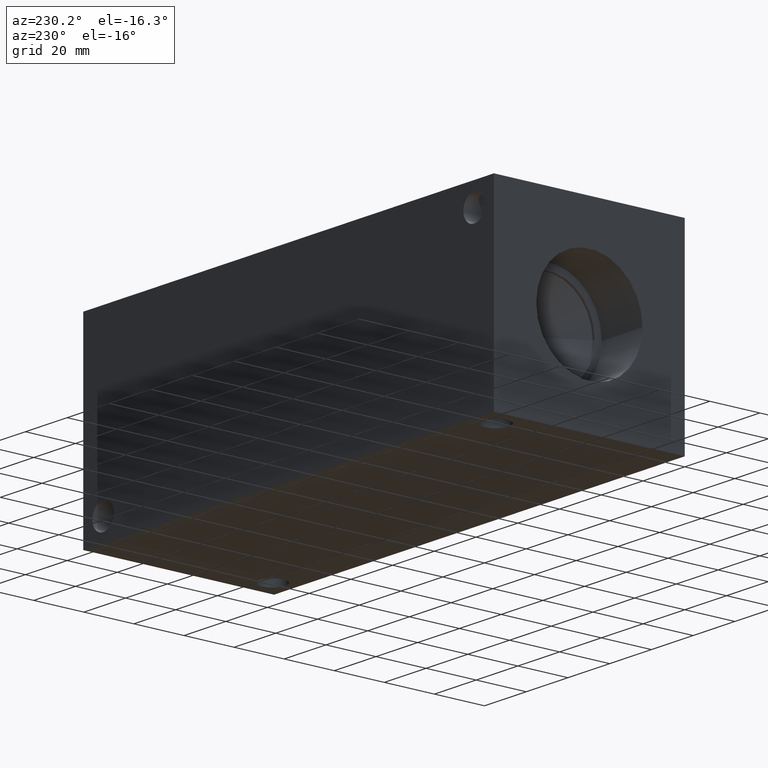
[diagram: clean part render]
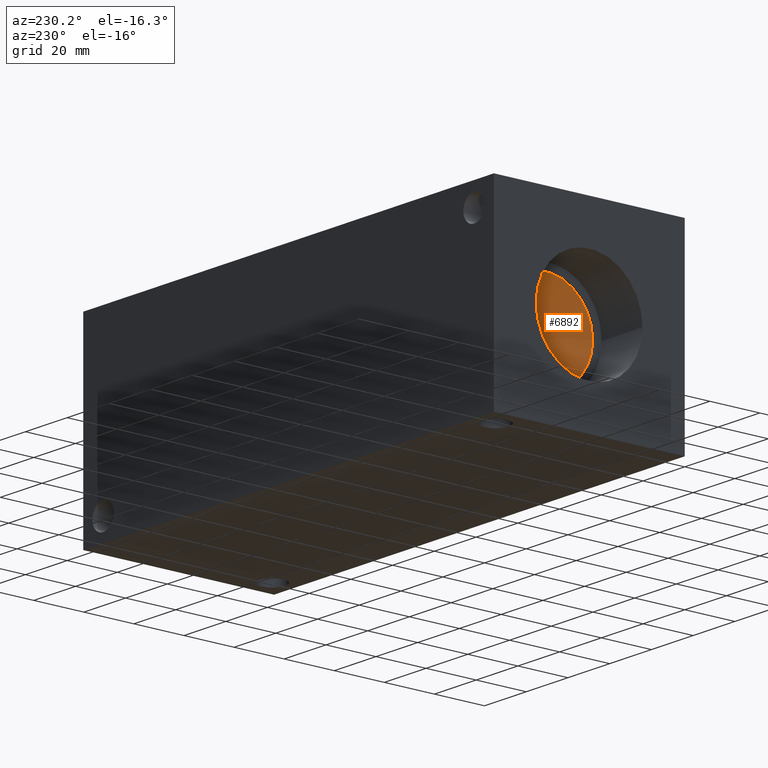
[diagram: same view with one face highlighted and labeled with its STEP entity id]
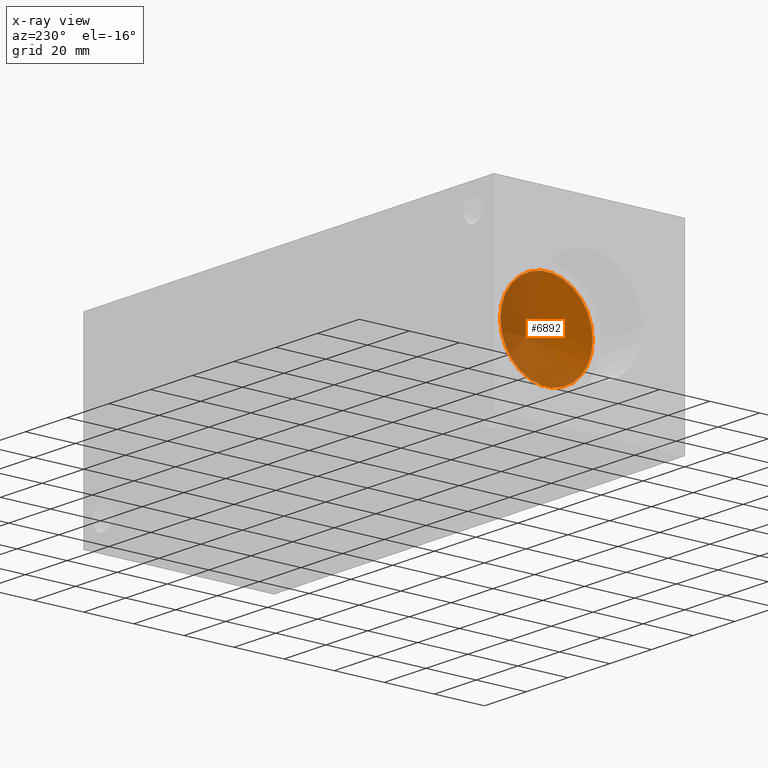
[diagram: x-ray of the same camera — body ghosted, the highlighted face saturated]
A machine part, auxiliary view. The second image highlights one B-rep face of the part: STEP entity #6892.
The next image is the same camera in x-ray: the body ghosted, the highlighted face saturated — about 52% of this face is hidden behind the body in this view.
In plain terms, the highlighted conical surface has half-angle 60 deg.
Its self-contained STEP definition (entity closure, byte-faithful):
#43=CONICAL_SURFACE('',#7168,9.22655,1.0471975511966);
#63=CIRCLE('',#7169,18.4531);
#64=CIRCLE('',#7170,18.4531);
#771=FACE_OUTER_BOUND('',#1153,.T.);
#1153=EDGE_LOOP('',(#5876,#5877,#5878,#5879));
#1854=LINE('',#11656,#2537);
#2537=VECTOR('',#8363,9.22655);
#3154=VERTEX_POINT('',#11652);
#3155=VERTEX_POINT('',#11653);
#3156=VERTEX_POINT('',#11655);
#4077=EDGE_CURVE('',#3154,#3155,#63,.T.);
#4078=EDGE_CURVE('',#3155,#3156,#1854,.T.);
#4079=EDGE_CURVE('',#3155,#3154,#64,.T.);
#5876=ORIENTED_EDGE('',*,*,#4077,.T.);
#5877=ORIENTED_EDGE('',*,*,#4078,.T.);
#5878=ORIENTED_EDGE('',*,*,#4078,.F.);
#5879=ORIENTED_EDGE('',*,*,#4079,.T.);
#6892=ADVANCED_FACE('',(#771),#43,.F.);
#7168=AXIS2_PLACEMENT_3D('',#11651,#8359,#8360);
#7169=AXIS2_PLACEMENT_3D('',#11654,#8361,#8362);
#7170=AXIS2_PLACEMENT_3D('',#11657,#8364,#8365);
#8359=DIRECTION('center_axis',(-1.,0.,0.));
#8360=DIRECTION('ref_axis',(0.,1.,0.));
#8361=DIRECTION('center_axis',(-1.,0.,0.));
#8362=DIRECTION('ref_axis',(0.,1.,0.));
#8363=DIRECTION('',(0.5,0.866025403784439,-1.06057523872491E-16));
#8364=DIRECTION('center_axis',(-1.,0.,0.));
#8365=DIRECTION('ref_axis',(0.,1.,0.));
#11651=CARTESIAN_POINT('Origin',(25.8995411261915,38.1,38.1));
#11652=CARTESIAN_POINT('',(20.57259,56.5531,38.1));
#11653=CARTESIAN_POINT('',(20.57259,19.6469,38.1));
#11654=CARTESIAN_POINT('Origin',(20.57259,38.1,38.1));
#11655=CARTESIAN_POINT('',(31.2264922523831,38.1,38.1));
#11656=CARTESIAN_POINT('',(25.8995411261915,28.87345,38.1));
#11657=CARTESIAN_POINT('Origin',(20.57259,38.1,38.1));